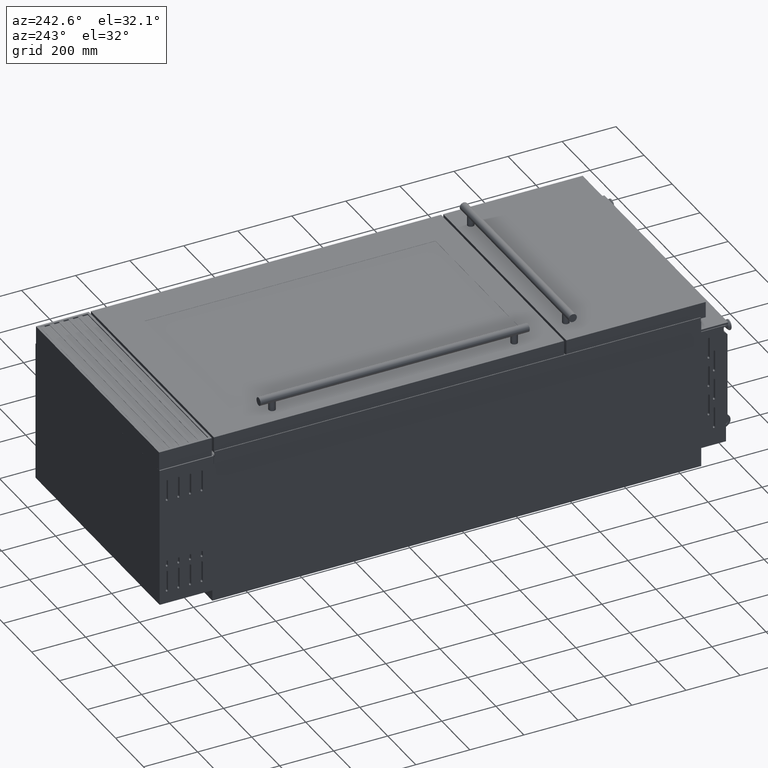
[diagram: clean part render]
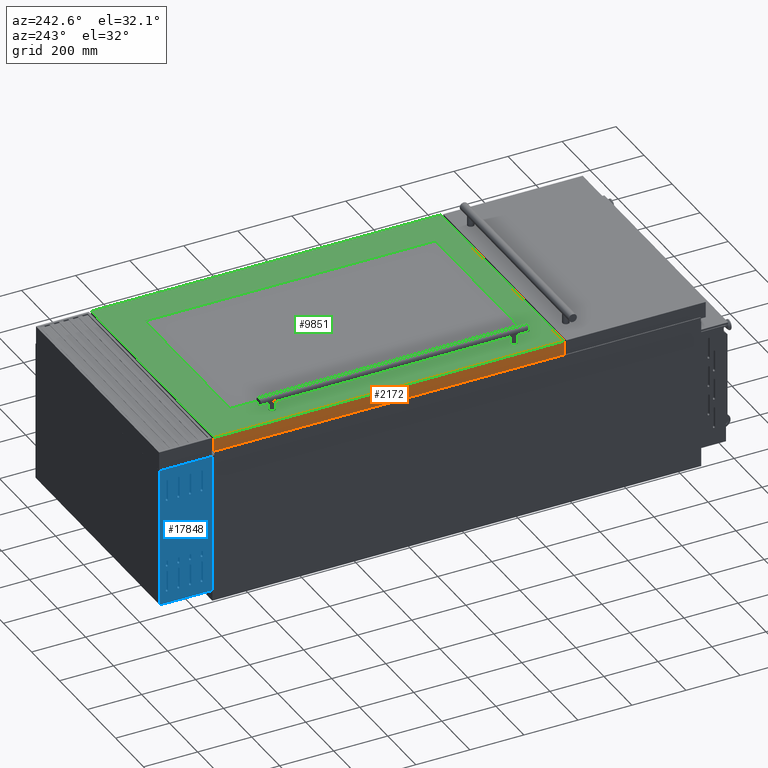
[diagram: same view with three faces highlighted in distinct colors, each labeled with its STEP entity id]
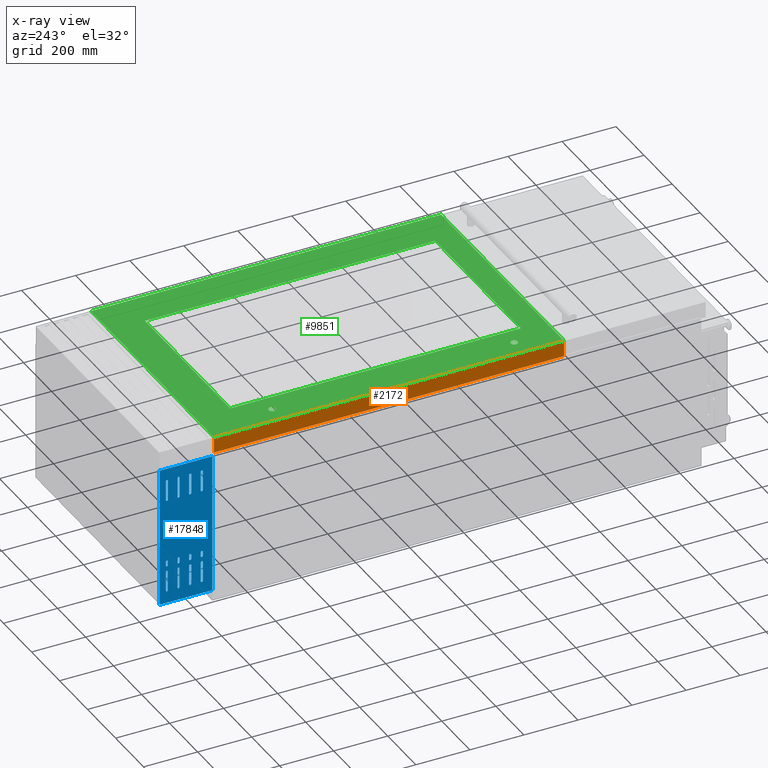
[diagram: x-ray of the same camera — body ghosted, the three highlighted faces saturated]
A machine part, auxiliary view with three faces highlighted in distinct colors.
The next image is the same camera in x-ray (body ghosted, the three faces saturated) — at least one of them is partly hidden behind the body in this view.
Their STEP definitions:

[orange] entity #2172 — the highlighted planar face has unit normal (1, 0, 0).
#817 = LINE ( 'NONE', #4638, #18185 ) ;
#1066 = DIRECTION ( 'NONE',  ( -0.0000000000000000000, -1.000000000000000000, -0.0000000000000000000 ) ) ;
#1928 = DIRECTION ( 'NONE',  ( -0.0000000000000000000, -0.0000000000000000000, -1.000000000000000000 ) ) ;
#2172 = ADVANCED_FACE ( 'NONE', ( #12111 ), #18473, .F. ) ;
#3362 = VERTEX_POINT ( 'NONE', #9250 ) ;
#3401 = CARTESIAN_POINT ( 'NONE',  ( -439.4999993500006800, 945.3500000000000200, 349.0000000000001100 ) ) ;
#3466 = DIRECTION ( 'NONE',  ( -0.0000000000000000000, -0.0000000000000000000, -1.000000000000000000 ) ) ;
#4139 = EDGE_CURVE ( 'NONE', #15438, #5495, #9909, .T. ) ;
#4638 = CARTESIAN_POINT ( 'NONE',  ( -439.4999993500006800, -350.6500000000000300, 349.0000000000001100 ) ) ;
#4844 = ORIENTED_EDGE ( 'NONE', *, *, #16364, .T. ) ;
#4917 = EDGE_LOOP ( 'NONE', ( #4844, #7788, #6178, #14818 ) ) ;
#4963 = DIRECTION ( 'NONE',  ( 0.0000000000000000000, 0.0000000000000000000, -1.000000000000000000 ) ) ;
#5036 = DIRECTION ( 'NONE',  ( 1.000000000000000000, 0.0000000000000000000, 0.0000000000000000000 ) ) ;
#5495 = VERTEX_POINT ( 'NONE', #19043 ) ;
#5905 = VECTOR ( 'NONE', #3466, 1000.000000000000000 ) ;
#6178 = ORIENTED_EDGE ( 'NONE', *, *, #12892, .F. ) ;
#6608 = VERTEX_POINT ( 'NONE', #15229 ) ;
#6886 = VECTOR ( 'NONE', #1066, 1000.000000000000000 ) ;
#7788 = ORIENTED_EDGE ( 'NONE', *, *, #14039, .F. ) ;
#9250 = CARTESIAN_POINT ( 'NONE',  ( -439.4999993500006800, -350.6500000000000300, 290.0000000000001100 ) ) ;
#9909 = LINE ( 'NONE', #12776, #5905 ) ;
#12111 = FACE_OUTER_BOUND ( 'NONE', #4917, .T. ) ;
#12252 = AXIS2_PLACEMENT_3D ( 'NONE', #12625, #5036, #4963 ) ;
#12625 = CARTESIAN_POINT ( 'NONE',  ( -439.4999993500006800, -350.6500000000000300, 349.0000000000001100 ) ) ;
#12734 = LINE ( 'NONE', #17501, #6886 ) ;
#12776 = CARTESIAN_POINT ( 'NONE',  ( -439.4999993500006800, 945.3500000000000200, 349.0000000000001100 ) ) ;
#12892 = EDGE_CURVE ( 'NONE', #15438, #6608, #817, .T. ) ;
#13852 = CARTESIAN_POINT ( 'NONE',  ( -439.4999993500006800, -350.6500000000000300, 349.0000000000001100 ) ) ;
#14039 = EDGE_CURVE ( 'NONE', #6608, #3362, #19020, .T. ) ;
#14818 = ORIENTED_EDGE ( 'NONE', *, *, #4139, .T. ) ;
#15044 = VECTOR ( 'NONE', #1928, 1000.000000000000000 ) ;
#15135 = DIRECTION ( 'NONE',  ( -0.0000000000000000000, -1.000000000000000000, -0.0000000000000000000 ) ) ;
#15229 = CARTESIAN_POINT ( 'NONE',  ( -439.4999993500006800, -350.6500000000000300, 349.0000000000001100 ) ) ;
#15438 = VERTEX_POINT ( 'NONE', #3401 ) ;
#16364 = EDGE_CURVE ( 'NONE', #5495, #3362, #12734, .T. ) ;
#17501 = CARTESIAN_POINT ( 'NONE',  ( -439.4999993500006800, -350.6500000000000300, 290.0000000000001100 ) ) ;
#18185 = VECTOR ( 'NONE', #15135, 1000.000000000000000 ) ;
#18473 = PLANE ( 'NONE',  #12252 ) ;
#19020 = LINE ( 'NONE', #13852, #15044 ) ;
#19043 = CARTESIAN_POINT ( 'NONE',  ( -439.4999993500006800, 945.3500000000000200, 290.0000000000001100 ) ) ;

[blue] entity #17848 — the highlighted planar face has unit normal (1, -0, 0).
#25 = VERTEX_POINT ( 'NONE', #13879 ) ;
#34 = CARTESIAN_POINT ( 'NONE',  ( -443.0000000000000600, 992.3500000000007000, -75.97999999999996100 ) ) ;
#106 = EDGE_CURVE ( 'NONE', #8169, #7935, #3917, .T. ) ;
#150 = CARTESIAN_POINT ( 'NONE',  ( -443.0000000000000600, 988.3500000000005900, -94.97999999999987600 ) ) ;
#154 = DIRECTION ( 'NONE',  ( 1.000000000000000000, -0.0000000000000000000, -1.067522139062650300E-016 ) ) ;
#172 = EDGE_LOOP ( 'NONE', ( #4499, #9025, #9192, #9370, #8492 ) ) ;
#180 = EDGE_CURVE ( 'NONE', #2070, #16384, #12817, .T. ) ;
#183 = CARTESIAN_POINT ( 'NONE',  ( -443.0000000000000600, 1031.350000000000100, -94.97999999999984800 ) ) ;
#185 = CARTESIAN_POINT ( 'NONE',  ( -443.0000000000000600, 996.3500000000007000, -191.9799999999999300 ) ) ;
#186 = DIRECTION ( 'NONE',  ( 0.0000000000000000000, 0.0000000000000000000, -1.000000000000000000 ) ) ;
#195 = CIRCLE ( 'NONE', #264, 4.000000000000003600 ) ;
#230 = CARTESIAN_POINT ( 'NONE',  ( -443.0000000000000600, 1121.350000000000400, -79.97999999999990500 ) ) ;
#264 = AXIS2_PLACEMENT_3D ( 'NONE', #3281, #6479, #16955 ) ;
#296 = VERTEX_POINT ( 'NONE', #16643 ) ;
#347 = VERTEX_POINT ( 'NONE', #13907 ) ;
#411 = LINE ( 'NONE', #15000, #11890 ) ;
#672 = CARTESIAN_POINT ( 'NONE',  ( -443.0000000000000000, 1148.350000000000100, -239.9999999999998600 ) ) ;
#679 = FACE_BOUND ( 'NONE', #8314, .T. ) ;
#688 = EDGE_CURVE ( 'NONE', #876, #2163, #3421, .T. ) ;
#698 = DIRECTION ( 'NONE',  ( 0.0000000000000000000, 0.0000000000000000000, -1.000000000000000000 ) ) ;
#758 = CARTESIAN_POINT ( 'NONE',  ( -443.0000000000000600, 1031.350000000000400, 159.9800000000002200 ) ) ;
#840 = AXIS2_PLACEMENT_3D ( 'NONE', #6106, #7482, #7743 ) ;
#876 = VERTEX_POINT ( 'NONE', #13476 ) ;
#886 = AXIS2_PLACEMENT_3D ( 'NONE', #15368, #13813, #6395 ) ;
#907 = AXIS2_PLACEMENT_3D ( 'NONE', #18463, #8021, #9474 ) ;
#964 = VECTOR ( 'NONE', #3979, 1000.000000000000000 ) ;
#966 = DIRECTION ( 'NONE',  ( 1.000000000000000000, -0.0000000000000000000, -1.067522139062650300E-016 ) ) ;
#967 = DIRECTION ( 'NONE',  ( 0.0000000000000000000, 0.0000000000000000000, 1.000000000000000000 ) ) ;
#968 = ORIENTED_EDGE ( 'NONE', *, *, #2478, .T. ) ;
#979 = ORIENTED_EDGE ( 'NONE', *, *, #11142, .T. ) ;
#1019 = LINE ( 'NONE', #10016, #3598 ) ;
#1022 = CARTESIAN_POINT ( 'NONE',  ( -443.0000000000000600, 992.3500000000007000, -119.9799999999999200 ) ) ;
#1070 = CARTESIAN_POINT ( 'NONE',  ( -443.0000000000000600, 1121.350000000000600, -94.97999999999990500 ) ) ;
#1117 = EDGE_CURVE ( 'NONE', #7165, #12181, #4077, .T. ) ;
#1142 = FACE_BOUND ( 'NONE', #15529, .T. ) ;
#1165 = EDGE_LOOP ( 'NONE', ( #6804, #7881, #5252, #15673, #17868 ) ) ;
#1195 = DIRECTION ( 'NONE',  ( 0.0000000000000000000, -0.0000000000000000000, -1.000000000000000000 ) ) ;
#1221 = CARTESIAN_POINT ( 'NONE',  ( -443.0000000000000600, 1035.350000000000400, 159.9800000000001000 ) ) ;
#1300 = DIRECTION ( 'NONE',  ( 0.0000000000000000000, 0.0000000000000000000, -1.000000000000000000 ) ) ;
#1333 = ORIENTED_EDGE ( 'NONE', *, *, #3010, .T. ) ;
#1497 = CARTESIAN_POINT ( 'NONE',  ( -443.0000000000000600, 1035.350000000000400, -115.9799999999998900 ) ) ;
#1556 = VECTOR ( 'NONE', #14692, 1000.000000000000000 ) ;
#1562 = CIRCLE ( 'NONE', #8762, 4.000000000000225600 ) ;
#1595 = LINE ( 'NONE', #5511, #8843 ) ;
#1599 = EDGE_CURVE ( 'NONE', #15693, #12159, #14495, .T. ) ;
#1609 = CIRCLE ( 'NONE', #5859, 4.000000000000114600 ) ;
#1630 = CARTESIAN_POINT ( 'NONE',  ( -443.0000000000000600, 1117.350000000000400, 231.9800000000001600 ) ) ;
#1645 = CARTESIAN_POINT ( 'NONE',  ( -443.0000000000000600, 988.3500000000007000, 159.9800000000001300 ) ) ;
#1722 = EDGE_LOOP ( 'NONE', ( #15289, #7330, #3874, #12455, #8467 ) ) ;
#1767 = VECTOR ( 'NONE', #3076, 1000.000000000000000 ) ;
#1777 = CIRCLE ( 'NONE', #9581, 4.000000000000003600 ) ;
#1811 = VECTOR ( 'NONE', #8220, 1000.000000000000000 ) ;
#1828 = CARTESIAN_POINT ( 'NONE',  ( -443.0000000000000600, 1039.350000000000400, -191.9799999999999900 ) ) ;
#2012 = VECTOR ( 'NONE', #17873, 1000.000000000000000 ) ;
#2059 = LINE ( 'NONE', #8709, #1556 ) ;
#2070 = VERTEX_POINT ( 'NONE', #1630 ) ;
#2077 = CARTESIAN_POINT ( 'NONE',  ( -443.0000000000000600, 996.3500000000007000, 159.9800000000001300 ) ) ;
#2083 = PLANE ( 'NONE',  #7268 ) ;
#2088 = AXIS2_PLACEMENT_3D ( 'NONE', #17200, #9742, #17262 ) ;
#2098 = FACE_BOUND ( 'NONE', #1165, .T. ) ;
#2101 = CARTESIAN_POINT ( 'NONE',  ( -443.0000000000000600, 1121.350000000000400, 231.9800000000001600 ) ) ;
#2163 = VERTEX_POINT ( 'NONE', #8038 ) ;
#2178 = DIRECTION ( 'NONE',  ( 0.0000000000000000000, 0.0000000000000000000, -1.000000000000000000 ) ) ;
#2316 = CARTESIAN_POINT ( 'NONE',  ( -443.0000000000000600, 1121.350000000000400, -115.9799999999998900 ) ) ;
#2383 = AXIS2_PLACEMENT_3D ( 'NONE', #2945, #10545, #19312 ) ;
#2425 = DIRECTION ( 'NONE',  ( 1.000000000000000000, -0.0000000000000000000, -1.067522139062650300E-016 ) ) ;
#2478 = EDGE_CURVE ( 'NONE', #5921, #347, #4093, .T. ) ;
#2493 = CIRCLE ( 'NONE', #8978, 4.000000000000003600 ) ;
#2515 = CIRCLE ( 'NONE', #15174, 4.000000000000003600 ) ;
#2543 = EDGE_CURVE ( 'NONE', #6942, #5008, #5043, .T. ) ;
#2551 = CIRCLE ( 'NONE', #14973, 4.000000000000003600 ) ;
#2561 = DIRECTION ( 'NONE',  ( 1.000000000000000000, -0.0000000000000000000, -1.067522139062650300E-016 ) ) ;
#2581 = DIRECTION ( 'NONE',  ( 1.000000000000000000, -0.0000000000000000000, -1.067522139062650300E-016 ) ) ;
#2605 = VERTEX_POINT ( 'NONE', #7170 ) ;
#2609 = ORIENTED_EDGE ( 'NONE', *, *, #18442, .T. ) ;
#2629 = ORIENTED_EDGE ( 'NONE', *, *, #18118, .T. ) ;
#2665 = VERTEX_POINT ( 'NONE', #18437 ) ;
#2676 = EDGE_CURVE ( 'NONE', #13024, #16521, #7854, .T. ) ;
#2691 = ORIENTED_EDGE ( 'NONE', *, *, #14420, .T. ) ;
#2706 = CIRCLE ( 'NONE', #12511, 4.000000000000003600 ) ;
#2750 = ORIENTED_EDGE ( 'NONE', *, *, #13135, .T. ) ;
#2774 = DIRECTION ( 'NONE',  ( 0.0000000000000000000, 0.0000000000000000000, 1.000000000000000000 ) ) ;
#2820 = CARTESIAN_POINT ( 'NONE',  ( -443.0000000000000600, 1078.350000000000400, 159.9800000000001000 ) ) ;
#2913 = CARTESIAN_POINT ( 'NONE',  ( -443.0000000000000600, 1078.350000000000400, 235.9800000000001300 ) ) ;
#2945 = CARTESIAN_POINT ( 'NONE',  ( -443.0000000000000600, 1121.350000000000400, -119.9799999999998900 ) ) ;
#3010 = EDGE_CURVE ( 'NONE', #18115, #14449, #5282, .T. ) ;
#3076 = DIRECTION ( 'NONE',  ( 0.0000000000000000000, 0.0000000000000000000, 1.000000000000000000 ) ) ;
#3077 = VERTEX_POINT ( 'NONE', #16879 ) ;
#3087 = DIRECTION ( 'NONE',  ( 0.0000000000000000000, 0.0000000000000000000, -1.000000000000000000 ) ) ;
#3104 = ORIENTED_EDGE ( 'NONE', *, *, #13248, .F. ) ;
#3107 = CIRCLE ( 'NONE', #5886, 4.000000000000003600 ) ;
#3142 = DIRECTION ( 'NONE',  ( 0.0000000000000000000, 0.0000000000000000000, 1.000000000000000000 ) ) ;
#3155 = VECTOR ( 'NONE', #5106, 1000.000000000000000 ) ;
#3210 = VECTOR ( 'NONE', #15830, 1000.000000000000000 ) ;
#3261 = DIRECTION ( 'NONE',  ( 0.0000000000000000000, 0.0000000000000000000, -1.000000000000000000 ) ) ;
#3281 = CARTESIAN_POINT ( 'NONE',  ( -443.0000000000000600, 1078.350000000000400, -119.9799999999998300 ) ) ;
#3302 = CARTESIAN_POINT ( 'NONE',  ( -443.0000000000000600, 988.3500000000008200, -79.97999999999986200 ) ) ;
#3306 = DIRECTION ( 'NONE',  ( 1.000000000000000000, -0.0000000000000000000, -1.067522139062650300E-016 ) ) ;
#3326 = CARTESIAN_POINT ( 'NONE',  ( -443.0000000000000600, 1125.350000000000400, 231.9800000000001600 ) ) ;
#3333 = VECTOR ( 'NONE', #19455, 1000.000000000000000 ) ;
#3421 = CIRCLE ( 'NONE', #907, 4.000000000000003600 ) ;
#3552 = CARTESIAN_POINT ( 'NONE',  ( -443.0000000000000000, 1074.350000000000400, -191.9799999999999300 ) ) ;
#3577 = DIRECTION ( 'NONE',  ( 0.0000000000000000000, 0.0000000000000000000, -1.000000000000000000 ) ) ;
#3598 = VECTOR ( 'NONE', #4101, 1000.000000000000000 ) ;
#3625 = EDGE_CURVE ( 'NONE', #5588, #17626, #7105, .T. ) ;
#3667 = DIRECTION ( 'NONE',  ( 1.000000000000000000, -0.0000000000000000000, -1.067522139062650300E-016 ) ) ;
#3707 = LINE ( 'NONE', #8044, #17757 ) ;
#3709 = CARTESIAN_POINT ( 'NONE',  ( -443.0000000000000600, 1074.350000000000400, 231.9800000000001300 ) ) ;
#3720 = FACE_BOUND ( 'NONE', #5432, .T. ) ;
#3747 = CARTESIAN_POINT ( 'NONE',  ( -443.0000000000000600, 1039.350000000000400, -191.9799999999999900 ) ) ;
#3818 = VERTEX_POINT ( 'NONE', #6829 ) ;
#3821 = DIRECTION ( 'NONE',  ( 0.0000000000000000000, -0.0000000000000000000, -1.000000000000000000 ) ) ;
#3874 = ORIENTED_EDGE ( 'NONE', *, *, #4800, .T. ) ;
#3876 = AXIS2_PLACEMENT_3D ( 'NONE', #8109, #966, #17477 ) ;
#3917 = LINE ( 'NONE', #6589, #11429 ) ;
#3949 = DIRECTION ( 'NONE',  ( 1.000000000000000000, -0.0000000000000000000, -1.067522139062650300E-016 ) ) ;
#3979 = DIRECTION ( 'NONE',  ( 0.0000000000000000000, 0.0000000000000000000, 1.000000000000000000 ) ) ;
#4032 = VERTEX_POINT ( 'NONE', #16494 ) ;
#4066 = AXIS2_PLACEMENT_3D ( 'NONE', #230, #9146, #3261 ) ;
#4077 = CIRCLE ( 'NONE', #15870, 4.000000000000003600 ) ;
#4093 = LINE ( 'NONE', #12047, #1767 ) ;
#4101 = DIRECTION ( 'NONE',  ( -0.0000000000000000000, -1.000000000000000000, -0.0000000000000000000 ) ) ;
#4103 = CARTESIAN_POINT ( 'NONE',  ( -443.0000000000000000, 996.3500000000005900, -79.97999999999983300 ) ) ;
#4164 = FACE_BOUND ( 'NONE', #17386, .T. ) ;
#4226 = VERTEX_POINT ( 'NONE', #14591 ) ;
#4227 = VERTEX_POINT ( 'NONE', #4103 ) ;
#4243 = EDGE_CURVE ( 'NONE', #2163, #8675, #19247, .T. ) ;
#4256 = CARTESIAN_POINT ( 'NONE',  ( -443.0000000000000600, 996.3500000000007000, -191.9799999999999300 ) ) ;
#4298 = EDGE_CURVE ( 'NONE', #19195, #18329, #17146, .T. ) ;
#4324 = VECTOR ( 'NONE', #6616, 1000.000000000000000 ) ;
#4436 = DIRECTION ( 'NONE',  ( 1.000000000000000000, -0.0000000000000000000, -1.067522139062650300E-016 ) ) ;
#4499 = ORIENTED_EDGE ( 'NONE', *, *, #19226, .T. ) ;
#4532 = VERTEX_POINT ( 'NONE', #18331 ) ;
#4546 = CARTESIAN_POINT ( 'NONE',  ( -443.0000000000000600, 992.3500000000007000, 235.9800000000001300 ) ) ;
#4550 = DIRECTION ( 'NONE',  ( 1.000000000000000000, -0.0000000000000000000, -1.067522139062650300E-016 ) ) ;
#4566 = LINE ( 'NONE', #14145, #6929 ) ;
#4800 = EDGE_CURVE ( 'NONE', #6923, #15693, #11262, .T. ) ;
#4823 = VECTOR ( 'NONE', #9845, 1000.000000000000000 ) ;
#4896 = AXIS2_PLACEMENT_3D ( 'NONE', #9936, #5475, #14505 ) ;
#4954 = DIRECTION ( 'NONE',  ( 0.0000000000000000000, 0.0000000000000000000, -1.000000000000000000 ) ) ;
#5008 = VERTEX_POINT ( 'NONE', #10510 ) ;
#5043 = CIRCLE ( 'NONE', #14512, 4.000000000000003600 ) ;
#5069 = CARTESIAN_POINT ( 'NONE',  ( -443.0000000000000600, 1078.350000000000400, 231.9800000000001300 ) ) ;
#5106 = DIRECTION ( 'NONE',  ( 0.0000000000000000000, 0.0000000000000000000, 1.000000000000000000 ) ) ;
#5138 = LINE ( 'NONE', #3709, #9822 ) ;
#5173 = DIRECTION ( 'NONE',  ( 0.0000000000000000000, 0.0000000000000000000, -1.000000000000000000 ) ) ;
#5188 = ORIENTED_EDGE ( 'NONE', *, *, #17766, .T. ) ;
#5189 = ORIENTED_EDGE ( 'NONE', *, *, #6524, .T. ) ;
#5221 = DIRECTION ( 'NONE',  ( 0.0000000000000000000, 0.0000000000000000000, -1.000000000000000000 ) ) ;
#5248 = DIRECTION ( 'NONE',  ( 0.0000000000000000000, 0.0000000000000000000, -1.000000000000000000 ) ) ;
#5252 = ORIENTED_EDGE ( 'NONE', *, *, #180, .T. ) ;
#5266 = VERTEX_POINT ( 'NONE', #185 ) ;
#5282 = LINE ( 'NONE', #9030, #2012 ) ;
#5313 = CIRCLE ( 'NONE', #6933, 4.000000000000003600 ) ;
#5341 = EDGE_CURVE ( 'NONE', #14416, #25, #1609, .T. ) ;
#5350 = CIRCLE ( 'NONE', #4066, 4.000000000000225600 ) ;
#5362 = EDGE_CURVE ( 'NONE', #16065, #18840, #10527, .T. ) ;
#5374 = EDGE_CURVE ( 'NONE', #3818, #2070, #18023, .T. ) ;
#5432 = EDGE_LOOP ( 'NONE', ( #8931, #7639, #6369, #11937, #9491 ) ) ;
#5436 = EDGE_CURVE ( 'NONE', #13620, #296, #3707, .T. ) ;
#5475 = DIRECTION ( 'NONE',  ( 1.000000000000000000, -0.0000000000000000000, -1.067522139062650300E-016 ) ) ;
#5483 = CARTESIAN_POINT ( 'NONE',  ( -443.0000000000000600, 1125.350000000000400, -119.9799999999998900 ) ) ;
#5511 = CARTESIAN_POINT ( 'NONE',  ( -443.0000000000000600, 1039.350000000000400, 231.9800000000001300 ) ) ;
#5588 = VERTEX_POINT ( 'NONE', #11702 ) ;
#5724 = CARTESIAN_POINT ( 'NONE',  ( -443.0000000000000600, 1035.350000000000400, -75.97999999999962000 ) ) ;
#5777 = EDGE_CURVE ( 'NONE', #2665, #8901, #13176, .T. ) ;
#5823 = CARTESIAN_POINT ( 'NONE',  ( -443.0000000000000600, 1074.350000000000400, -94.97999999999987600 ) ) ;
#5853 = ORIENTED_EDGE ( 'NONE', *, *, #7588, .T. ) ;
#5859 = AXIS2_PLACEMENT_3D ( 'NONE', #14225, #18539, #5248 ) ;
#5873 = DIRECTION ( 'NONE',  ( 1.000000000000000000, -0.0000000000000000000, -1.067522139062650300E-016 ) ) ;
#5886 = AXIS2_PLACEMENT_3D ( 'NONE', #10361, #10558, #3087 ) ;
#5921 = VERTEX_POINT ( 'NONE', #2077 ) ;
#5924 = CIRCLE ( 'NONE', #6791, 4.000000000000225600 ) ;
#5934 = EDGE_CURVE ( 'NONE', #8675, #11490, #19054, .T. ) ;
#5950 = ORIENTED_EDGE ( 'NONE', *, *, #106, .T. ) ;
#6102 = EDGE_CURVE ( 'NONE', #8198, #18248, #13912, .T. ) ;
#6106 = CARTESIAN_POINT ( 'NONE',  ( -443.0000000000000600, 992.3500000000007000, 231.9800000000001300 ) ) ;
#6130 = AXIS2_PLACEMENT_3D ( 'NONE', #2820, #7199, #10172 ) ;
#6191 = EDGE_CURVE ( 'NONE', #12705, #13620, #17631, .T. ) ;
#6229 = CARTESIAN_POINT ( 'NONE',  ( -443.0000000000000600, 1039.350000000000400, -119.9799999999999500 ) ) ;
#6271 = EDGE_CURVE ( 'NONE', #14327, #4226, #10153, .T. ) ;
#6332 = CARTESIAN_POINT ( 'NONE',  ( -443.0000000000000600, 1074.350000000000400, -119.9799999999999200 ) ) ;
#6369 = ORIENTED_EDGE ( 'NONE', *, *, #17826, .T. ) ;
#6381 = ORIENTED_EDGE ( 'NONE', *, *, #8705, .T. ) ;
#6395 = DIRECTION ( 'NONE',  ( 0.0000000000000000000, 0.0000000000000000000, 1.000000000000000000 ) ) ;
#6465 = CARTESIAN_POINT ( 'NONE',  ( -443.0000000000000600, 1035.350000000000400, 231.9800000000000800 ) ) ;
#6479 = DIRECTION ( 'NONE',  ( 1.000000000000000000, -0.0000000000000000000, -1.067522139062650300E-016 ) ) ;
#6504 = CARTESIAN_POINT ( 'NONE',  ( -443.0000000000000600, 1121.350000000000400, 231.9800000000001600 ) ) ;
#6524 = EDGE_CURVE ( 'NONE', #5008, #12705, #7291, .T. ) ;
#6529 = EDGE_CURVE ( 'NONE', #16521, #5921, #3107, .T. ) ;
#6532 = FACE_OUTER_BOUND ( 'NONE', #10883, .T. ) ;
#6562 = VERTEX_POINT ( 'NONE', #17885 ) ;
#6569 = CARTESIAN_POINT ( 'NONE',  ( -443.0000000000000600, 1121.350000000000400, -119.9799999999998900 ) ) ;
#6589 = CARTESIAN_POINT ( 'NONE',  ( -443.0000000000000000, 953.3500000000001400, 280.0000000000001700 ) ) ;
#6616 = DIRECTION ( 'NONE',  ( 0.0000000000000000000, 0.0000000000000000000, -1.000000000000000000 ) ) ;
#6638 = AXIS2_PLACEMENT_3D ( 'NONE', #8277, #3949, #14316 ) ;
#6654 = CIRCLE ( 'NONE', #3876, 4.000000000000003600 ) ;
#6761 = LINE ( 'NONE', #7286, #17545 ) ;
#6763 = AXIS2_PLACEMENT_3D ( 'NONE', #17085, #2425, #8114 ) ;
#6779 = CARTESIAN_POINT ( 'NONE',  ( -443.0000000000000600, 1031.350000000000400, 231.9800000000000800 ) ) ;
#6791 = AXIS2_PLACEMENT_3D ( 'NONE', #7660, #4436, #186 ) ;
#6803 = EDGE_CURVE ( 'NONE', #17601, #13024, #7273, .T. ) ;
#6804 = ORIENTED_EDGE ( 'NONE', *, *, #16083, .T. ) ;
#6829 = CARTESIAN_POINT ( 'NONE',  ( -443.0000000000000600, 1121.350000000000400, 235.9800000000001600 ) ) ;
#6851 = DIRECTION ( 'NONE',  ( 1.000000000000000000, -0.0000000000000000000, -1.067522139062650300E-016 ) ) ;
#6859 = VECTOR ( 'NONE', #14750, 1000.000000000000000 ) ;
#6902 = LINE ( 'NONE', #9495, #3155 ) ;
#6912 = ORIENTED_EDGE ( 'NONE', *, *, #14325, .T. ) ;
#6919 = ORIENTED_EDGE ( 'NONE', *, *, #11674, .T. ) ;
#6923 = VERTEX_POINT ( 'NONE', #12813 ) ;
#6929 = VECTOR ( 'NONE', #15431, 1000.000000000000000 ) ;
#6933 = AXIS2_PLACEMENT_3D ( 'NONE', #9681, #12365, #4954 ) ;
#6942 = VERTEX_POINT ( 'NONE', #14384 ) ;
#7002 = AXIS2_PLACEMENT_3D ( 'NONE', #6569, #7762, #18270 ) ;
#7105 = CIRCLE ( 'NONE', #15360, 4.000000000000003600 ) ;
#7125 = DIRECTION ( 'NONE',  ( 0.0000000000000000000, 0.0000000000000000000, 1.000000000000000000 ) ) ;
#7165 = VERTEX_POINT ( 'NONE', #16448 ) ;
#7170 = CARTESIAN_POINT ( 'NONE',  ( -443.0000000000000600, 1082.350000000000400, -191.9799999999999300 ) ) ;
#7199 = DIRECTION ( 'NONE',  ( 1.000000000000000000, -0.0000000000000000000, -1.067522139062650300E-016 ) ) ;
#7224 = CARTESIAN_POINT ( 'NONE',  ( -443.0000000000000600, 1035.350000000000400, -79.97999999999984800 ) ) ;
#7231 = EDGE_CURVE ( 'NONE', #2665, #8169, #19217, .T. ) ;
#7267 = ORIENTED_EDGE ( 'NONE', *, *, #2543, .T. ) ;
#7268 = AXIS2_PLACEMENT_3D ( 'NONE', #17129, #17064, #5221 ) ;
#7273 = CIRCLE ( 'NONE', #6638, 4.000000000000003600 ) ;
#7281 = DIRECTION ( 'NONE',  ( 0.0000000000000000000, 0.0000000000000000000, 1.000000000000000000 ) ) ;
#7286 = CARTESIAN_POINT ( 'NONE',  ( -443.0000000000000600, 1074.350000000000400, -191.9799999999999300 ) ) ;
#7291 = LINE ( 'NONE', #15137, #3333 ) ;
#7311 = VERTEX_POINT ( 'NONE', #11110 ) ;
#7330 = ORIENTED_EDGE ( 'NONE', *, *, #16941, .T. ) ;
#7338 = CIRCLE ( 'NONE', #7627, 4.000000000000003600 ) ;
#7462 = CIRCLE ( 'NONE', #18389, 4.000000000000003600 ) ;
#7469 = FACE_BOUND ( 'NONE', #11069, .T. ) ;
#7482 = DIRECTION ( 'NONE',  ( 1.000000000000000000, -0.0000000000000000000, -1.067522139062650300E-016 ) ) ;
#7588 = EDGE_CURVE ( 'NONE', #4532, #8553, #195, .T. ) ;
#7627 = AXIS2_PLACEMENT_3D ( 'NONE', #6504, #3306, #10780 ) ;
#7639 = ORIENTED_EDGE ( 'NONE', *, *, #12443, .T. ) ;
#7660 = CARTESIAN_POINT ( 'NONE',  ( -443.0000000000000600, 1121.350000000000400, -79.97999999999990500 ) ) ;
#7686 = CARTESIAN_POINT ( 'NONE',  ( -443.0000000000000600, 1078.350000000000400, -79.97999999999987600 ) ) ;
#7692 = VERTEX_POINT ( 'NONE', #13827 ) ;
#7743 = DIRECTION ( 'NONE',  ( 0.0000000000000000000, 0.0000000000000000000, -1.000000000000000000 ) ) ;
#7762 = DIRECTION ( 'NONE',  ( 1.000000000000000000, -0.0000000000000000000, -1.067522139062650300E-016 ) ) ;
#7796 = ORIENTED_EDGE ( 'NONE', *, *, #18609, .T. ) ;
#7854 = LINE ( 'NONE', #17098, #4324 ) ;
#7881 = ORIENTED_EDGE ( 'NONE', *, *, #5374, .T. ) ;
#7935 = VERTEX_POINT ( 'NONE', #10711 ) ;
#8021 = DIRECTION ( 'NONE',  ( 1.000000000000000000, -0.0000000000000000000, -1.067522139062650300E-016 ) ) ;
#8038 = CARTESIAN_POINT ( 'NONE',  ( -443.0000000000000600, 1125.350000000000400, -191.9799999999999000 ) ) ;
#8044 = CARTESIAN_POINT ( 'NONE',  ( -443.0000000000000600, 1082.350000000000400, -79.97999999999987600 ) ) ;
#8071 = CARTESIAN_POINT ( 'NONE',  ( -443.0000000000000600, 1117.350000000000400, -191.9799999999999000 ) ) ;
#8101 = LINE ( 'NONE', #3747, #4823 ) ;
#8109 = CARTESIAN_POINT ( 'NONE',  ( -443.0000000000000600, 1078.350000000000400, -191.9799999999999300 ) ) ;
#8114 = DIRECTION ( 'NONE',  ( 0.0000000000000000000, 0.0000000000000000000, 1.000000000000000000 ) ) ;
#8130 = DIRECTION ( 'NONE',  ( -0.0000000000000000000, -1.000000000000000000, -0.0000000000000000000 ) ) ;
#8132 = LINE ( 'NONE', #18697, #17738 ) ;
#8164 = FACE_BOUND ( 'NONE', #11237, .T. ) ;
#8169 = VERTEX_POINT ( 'NONE', #11159 ) ;
#8172 = DIRECTION ( 'NONE',  ( 1.000000000000000000, -0.0000000000000000000, -1.067522139062650300E-016 ) ) ;
#8198 = VERTEX_POINT ( 'NONE', #14477 ) ;
#8220 = DIRECTION ( 'NONE',  ( 0.0000000000000000000, 0.0000000000000000000, -1.000000000000000000 ) ) ;
#8234 = DIRECTION ( 'NONE',  ( 0.0000000000000000000, 0.0000000000000000000, -1.000000000000000000 ) ) ;
#8277 = CARTESIAN_POINT ( 'NONE',  ( -443.0000000000000600, 992.3500000000007000, 231.9800000000001300 ) ) ;
#8279 = ORIENTED_EDGE ( 'NONE', *, *, #5362, .T. ) ;
#8313 = EDGE_CURVE ( 'NONE', #18248, #10658, #2515, .T. ) ;
#8314 = EDGE_LOOP ( 'NONE', ( #10604, #8769, #8279, #16148, #2629 ) ) ;
#8379 = EDGE_CURVE ( 'NONE', #11490, #6562, #11654, .T. ) ;
#8467 = ORIENTED_EDGE ( 'NONE', *, *, #15620, .T. ) ;
#8492 = ORIENTED_EDGE ( 'NONE', *, *, #14721, .T. ) ;
#8534 = DIRECTION ( 'NONE',  ( 0.0000000000000000000, 0.0000000000000000000, -1.000000000000000000 ) ) ;
#8553 = VERTEX_POINT ( 'NONE', #6332 ) ;
#8573 = DIRECTION ( 'NONE',  ( 1.000000000000000000, -0.0000000000000000000, -1.067522139062650300E-016 ) ) ;
#8632 = ORIENTED_EDGE ( 'NONE', *, *, #18808, .T. ) ;
#8675 = VERTEX_POINT ( 'NONE', #5483 ) ;
#8705 = EDGE_CURVE ( 'NONE', #17626, #11961, #15153, .T. ) ;
#8709 = CARTESIAN_POINT ( 'NONE',  ( -443.0000000000000600, 996.3500000000005900, -79.97999999999986200 ) ) ;
#8729 = DIRECTION ( 'NONE',  ( 0.0000000000000000000, -0.0000000000000000000, -1.000000000000000000 ) ) ;
#8762 = AXIS2_PLACEMENT_3D ( 'NONE', #7224, #17713, #17986 ) ;
#8769 = ORIENTED_EDGE ( 'NONE', *, *, #17958, .T. ) ;
#8804 = EDGE_CURVE ( 'NONE', #9117, #18083, #1562, .T. ) ;
#8816 = DIRECTION ( 'NONE',  ( 0.0000000000000000000, 0.0000000000000000000, 1.000000000000000000 ) ) ;
#8818 = DIRECTION ( 'NONE',  ( 0.0000000000000000000, 0.0000000000000000000, -1.000000000000000000 ) ) ;
#8843 = VECTOR ( 'NONE', #10034, 1000.000000000000000 ) ;
#8858 = CARTESIAN_POINT ( 'NONE',  ( -443.0000000000000600, 1125.350000000000600, -94.97999999999990500 ) ) ;
#8901 = VERTEX_POINT ( 'NONE', #15242 ) ;
#8911 = CIRCLE ( 'NONE', #840, 4.000000000000003600 ) ;
#8931 = ORIENTED_EDGE ( 'NONE', *, *, #1117, .T. ) ;
#8978 = AXIS2_PLACEMENT_3D ( 'NONE', #5069, #18696, #9582 ) ;
#9025 = ORIENTED_EDGE ( 'NONE', *, *, #4298, .T. ) ;
#9030 = CARTESIAN_POINT ( 'NONE',  ( -443.0000000000000600, 1125.350000000000600, -79.97999999999990500 ) ) ;
#9081 = CARTESIAN_POINT ( 'NONE',  ( -443.0000000000000600, 1031.350000000000400, 231.9800000000000800 ) ) ;
#9117 = VERTEX_POINT ( 'NONE', #15490 ) ;
#9146 = DIRECTION ( 'NONE',  ( 1.000000000000000000, -0.0000000000000000000, -1.067522139062650300E-016 ) ) ;
#9192 = ORIENTED_EDGE ( 'NONE', *, *, #18434, .T. ) ;
#9244 = AXIS2_PLACEMENT_3D ( 'NONE', #17787, #5873, #8818 ) ;
#9362 = CARTESIAN_POINT ( 'NONE',  ( -443.0000000000000600, 988.3500000000007000, 231.9800000000001300 ) ) ;
#9370 = ORIENTED_EDGE ( 'NONE', *, *, #5341, .T. ) ;
#9474 = DIRECTION ( 'NONE',  ( 0.0000000000000000000, 0.0000000000000000000, 1.000000000000000000 ) ) ;
#9491 = ORIENTED_EDGE ( 'NONE', *, *, #13121, .T. ) ;
#9495 = CARTESIAN_POINT ( 'NONE',  ( -443.0000000000000600, 1082.350000000000400, 231.9800000000001300 ) ) ;
#9581 = AXIS2_PLACEMENT_3D ( 'NONE', #12947, #6851, #9875 ) ;
#9582 = DIRECTION ( 'NONE',  ( 0.0000000000000000000, 0.0000000000000000000, -1.000000000000000000 ) ) ;
#9591 = FACE_BOUND ( 'NONE', #172, .T. ) ;
#9668 = CIRCLE ( 'NONE', #6763, 4.000000000000003600 ) ;
#9681 = CARTESIAN_POINT ( 'NONE',  ( -443.0000000000000600, 1121.350000000000400, 159.9800000000001600 ) ) ;
#9682 = DIRECTION ( 'NONE',  ( 1.000000000000000000, -0.0000000000000000000, -1.067522139062650300E-016 ) ) ;
#9684 = VECTOR ( 'NONE', #16539, 1000.000000000000000 ) ;
#9724 = ORIENTED_EDGE ( 'NONE', *, *, #5934, .T. ) ;
#9742 = DIRECTION ( 'NONE',  ( 1.000000000000000000, -0.0000000000000000000, -1.067522139062650300E-016 ) ) ;
#9745 = ORIENTED_EDGE ( 'NONE', *, *, #3625, .T. ) ;
#9822 = VECTOR ( 'NONE', #3577, 1000.000000000000000 ) ;
#9845 = DIRECTION ( 'NONE',  ( 0.0000000000000000000, 0.0000000000000000000, 1.000000000000000000 ) ) ;
#9872 = DIRECTION ( 'NONE',  ( 0.0000000000000000000, 0.0000000000000000000, 1.000000000000000000 ) ) ;
#9875 = DIRECTION ( 'NONE',  ( 0.0000000000000000000, 0.0000000000000000000, 1.000000000000000000 ) ) ;
#9919 = ORIENTED_EDGE ( 'NONE', *, *, #8313, .T. ) ;
#9936 = CARTESIAN_POINT ( 'NONE',  ( -443.0000000000000600, 1035.350000000000400, -79.97999999999984800 ) ) ;
#9997 = CARTESIAN_POINT ( 'NONE',  ( -443.0000000000000600, 1031.350000000000400, -191.9799999999999900 ) ) ;
#10014 = EDGE_CURVE ( 'NONE', #14449, #4032, #5924, .T. ) ;
#10016 = CARTESIAN_POINT ( 'NONE',  ( -443.0000000000000000, 1148.350000000000100, 280.0000000000001700 ) ) ;
#10034 = DIRECTION ( 'NONE',  ( 0.0000000000000000000, 0.0000000000000000000, 1.000000000000000000 ) ) ;
#10051 = VECTOR ( 'NONE', #5173, 1000.000000000000000 ) ;
#10093 = ORIENTED_EDGE ( 'NONE', *, *, #16842, .T. ) ;
#10136 = VECTOR ( 'NONE', #7281, 1000.000000000000000 ) ;
#10153 = LINE ( 'NONE', #12006, #6859 ) ;
#10170 = DIRECTION ( 'NONE',  ( 1.000000000000000000, -0.0000000000000000000, -1.067522139062650300E-016 ) ) ;
#10172 = DIRECTION ( 'NONE',  ( 0.0000000000000000000, 0.0000000000000000000, -1.000000000000000000 ) ) ;
#10275 = DIRECTION ( 'NONE',  ( 1.000000000000000000, -0.0000000000000000000, -1.067522139062650300E-016 ) ) ;
#10332 = ORIENTED_EDGE ( 'NONE', *, *, #6191, .T. ) ;
#10361 = CARTESIAN_POINT ( 'NONE',  ( -443.0000000000000600, 992.3500000000007000, 159.9800000000001300 ) ) ;
#10415 = CARTESIAN_POINT ( 'NONE',  ( -443.0000000000000600, 1117.350000000000100, -79.97999999999990500 ) ) ;
#10453 = CARTESIAN_POINT ( 'NONE',  ( -443.0000000000000600, 988.3500000000007000, -119.9799999999999200 ) ) ;
#10510 = CARTESIAN_POINT ( 'NONE',  ( -443.0000000000000600, 1074.350000000000400, -79.97999999999987600 ) ) ;
#10527 = LINE ( 'NONE', #17081, #10051 ) ;
#10545 = DIRECTION ( 'NONE',  ( 1.000000000000000000, -0.0000000000000000000, -1.067522139062650300E-016 ) ) ;
#10558 = DIRECTION ( 'NONE',  ( 1.000000000000000000, -0.0000000000000000000, -1.067522139062650300E-016 ) ) ;
#10566 = EDGE_CURVE ( 'NONE', #13610, #5266, #7462, .T. ) ;
#10604 = ORIENTED_EDGE ( 'NONE', *, *, #8804, .T. ) ;
#10622 = CIRCLE ( 'NONE', #6130, 4.000000000000003600 ) ;
#10658 = VERTEX_POINT ( 'NONE', #1828 ) ;
#10676 = CARTESIAN_POINT ( 'NONE',  ( -443.0000000000000000, 1148.350000000000100, 280.0000000000001700 ) ) ;
#10711 = CARTESIAN_POINT ( 'NONE',  ( -443.0000000000000000, 953.3500000000001400, 280.0000000000001700 ) ) ;
#10780 = DIRECTION ( 'NONE',  ( 0.0000000000000000000, 0.0000000000000000000, -1.000000000000000000 ) ) ;
#10781 = ORIENTED_EDGE ( 'NONE', *, *, #6529, .T. ) ;
#10883 = EDGE_LOOP ( 'NONE', ( #5950, #3104, #11161, #13597 ) ) ;
#10917 = ORIENTED_EDGE ( 'NONE', *, *, #6271, .T. ) ;
#11039 = ORIENTED_EDGE ( 'NONE', *, *, #15505, .T. ) ;
#11069 = EDGE_LOOP ( 'NONE', ( #9919, #18111, #17444, #10093, #11245 ) ) ;
#11110 = CARTESIAN_POINT ( 'NONE',  ( -443.0000000000000600, 1082.350000000000400, -119.9799999999999200 ) ) ;
#11123 = AXIS2_PLACEMENT_3D ( 'NONE', #1022, #2581, #9872 ) ;
#11142 = EDGE_CURVE ( 'NONE', #8553, #12503, #6761, .T. ) ;
#11159 = CARTESIAN_POINT ( 'NONE',  ( -443.0000000000000000, 953.3500000000001400, -239.9999999999998600 ) ) ;
#11161 = ORIENTED_EDGE ( 'NONE', *, *, #5777, .F. ) ;
#11200 = EDGE_CURVE ( 'NONE', #296, #6942, #2551, .T. ) ;
#11201 = VECTOR ( 'NONE', #3821, 1000.000000000000000 ) ;
#11237 = EDGE_LOOP ( 'NONE', ( #11039, #9745, #6381, #6912, #7796 ) ) ;
#11245 = ORIENTED_EDGE ( 'NONE', *, *, #6102, .T. ) ;
#11254 = CARTESIAN_POINT ( 'NONE',  ( -443.0000000000000600, 992.3500000000007000, -115.9799999999999200 ) ) ;
#11262 = CIRCLE ( 'NONE', #2088, 4.000000000000003600 ) ;
#11428 = CARTESIAN_POINT ( 'NONE',  ( -443.0000000000000600, 1125.350000000000400, 159.9800000000001600 ) ) ;
#11429 = VECTOR ( 'NONE', #18787, 1000.000000000000000 ) ;
#11475 = CIRCLE ( 'NONE', #4896, 4.000000000000225600 ) ;
#11490 = VERTEX_POINT ( 'NONE', #2316 ) ;
#11499 = VERTEX_POINT ( 'NONE', #11428 ) ;
#11504 = CIRCLE ( 'NONE', #9244, 4.000000000000225600 ) ;
#11561 = EDGE_CURVE ( 'NONE', #4226, #18115, #18928, .T. ) ;
#11654 = CIRCLE ( 'NONE', #2383, 4.000000000000003600 ) ;
#11674 = EDGE_CURVE ( 'NONE', #4032, #14327, #5350, .T. ) ;
#11702 = CARTESIAN_POINT ( 'NONE',  ( -443.0000000000000600, 1035.350000000000400, 235.9800000000000800 ) ) ;
#11704 = DIRECTION ( 'NONE',  ( 0.0000000000000000000, 0.0000000000000000000, -1.000000000000000000 ) ) ;
#11723 = EDGE_CURVE ( 'NONE', #11499, #7692, #17276, .T. ) ;
#11855 = DIRECTION ( 'NONE',  ( 1.000000000000000000, -0.0000000000000000000, -1.067522139062650300E-016 ) ) ;
#11890 = VECTOR ( 'NONE', #18295, 1000.000000000000000 ) ;
#11937 = ORIENTED_EDGE ( 'NONE', *, *, #16456, .T. ) ;
#11949 = AXIS2_PLACEMENT_3D ( 'NONE', #1070, #2561, #12992 ) ;
#11961 = VERTEX_POINT ( 'NONE', #758 ) ;
#12006 = CARTESIAN_POINT ( 'NONE',  ( -443.0000000000000600, 1117.350000000000100, -79.97999999999990500 ) ) ;
#12047 = CARTESIAN_POINT ( 'NONE',  ( -443.0000000000000600, 996.3500000000007000, 231.9800000000001300 ) ) ;
#12140 = CARTESIAN_POINT ( 'NONE',  ( -443.0000000000000600, 1074.350000000000400, 231.9800000000001300 ) ) ;
#12159 = VERTEX_POINT ( 'NONE', #10453 ) ;
#12170 = EDGE_LOOP ( 'NONE', ( #16711, #18409, #9724, #15972, #2609 ) ) ;
#12181 = VERTEX_POINT ( 'NONE', #2913 ) ;
#12365 = DIRECTION ( 'NONE',  ( 1.000000000000000000, -0.0000000000000000000, -1.067522139062650300E-016 ) ) ;
#12443 = EDGE_CURVE ( 'NONE', #12181, #14407, #2493, .T. ) ;
#12455 = ORIENTED_EDGE ( 'NONE', *, *, #1599, .T. ) ;
#12503 = VERTEX_POINT ( 'NONE', #3552 ) ;
#12511 = AXIS2_PLACEMENT_3D ( 'NONE', #6465, #9682, #698 ) ;
#12614 = EDGE_CURVE ( 'NONE', #10658, #17158, #8101, .T. ) ;
#12705 = VERTEX_POINT ( 'NONE', #5823 ) ;
#12786 = DIRECTION ( 'NONE',  ( 0.0000000000000000000, 0.0000000000000000000, -1.000000000000000000 ) ) ;
#12813 = CARTESIAN_POINT ( 'NONE',  ( -443.0000000000000600, 996.3500000000007000, -119.9799999999999200 ) ) ;
#12817 = LINE ( 'NONE', #18856, #1811 ) ;
#12872 = AXIS2_PLACEMENT_3D ( 'NONE', #19106, #17411, #11704 ) ;
#12947 = CARTESIAN_POINT ( 'NONE',  ( -443.0000000000000600, 1035.350000000000400, -119.9799999999998900 ) ) ;
#12954 = ORIENTED_EDGE ( 'NONE', *, *, #11561, .T. ) ;
#12962 = CARTESIAN_POINT ( 'NONE',  ( -443.0000000000000600, 1125.350000000000400, -191.9799999999999000 ) ) ;
#12992 = DIRECTION ( 'NONE',  ( 0.0000000000000000000, 0.0000000000000000000, -1.000000000000000000 ) ) ;
#13024 = VERTEX_POINT ( 'NONE', #9362 ) ;
#13098 = FACE_BOUND ( 'NONE', #18288, .T. ) ;
#13121 = EDGE_CURVE ( 'NONE', #18413, #7165, #6902, .T. ) ;
#13135 = EDGE_CURVE ( 'NONE', #12503, #2605, #6654, .T. ) ;
#13176 = LINE ( 'NONE', #10676, #9684 ) ;
#13248 = EDGE_CURVE ( 'NONE', #8901, #7935, #1019, .T. ) ;
#13350 = DIRECTION ( 'NONE',  ( 0.0000000000000000000, 0.0000000000000000000, -1.000000000000000000 ) ) ;
#13476 = CARTESIAN_POINT ( 'NONE',  ( -443.0000000000000000, 1117.350000000000400, -191.9799999999999300 ) ) ;
#13597 = ORIENTED_EDGE ( 'NONE', *, *, #7231, .T. ) ;
#13610 = VERTEX_POINT ( 'NONE', #17133 ) ;
#13620 = VERTEX_POINT ( 'NONE', #15891 ) ;
#13635 = AXIS2_PLACEMENT_3D ( 'NONE', #1221, #10170, #2178 ) ;
#13716 = VERTEX_POINT ( 'NONE', #14454 ) ;
#13813 = DIRECTION ( 'NONE',  ( 1.000000000000000000, -0.0000000000000000000, -1.067522139062650300E-016 ) ) ;
#13827 = CARTESIAN_POINT ( 'NONE',  ( -443.0000000000000000, 1125.350000000000400, 231.9800000000001600 ) ) ;
#13879 = CARTESIAN_POINT ( 'NONE',  ( -443.0000000000000600, 996.3500000000008200, -94.97999999999987600 ) ) ;
#13907 = CARTESIAN_POINT ( 'NONE',  ( -443.0000000000000000, 996.3500000000007000, 231.9800000000001300 ) ) ;
#13912 = LINE ( 'NONE', #9997, #15792 ) ;
#13981 = CARTESIAN_POINT ( 'NONE',  ( -443.0000000000000600, 1031.350000000000100, -79.97999999999984800 ) ) ;
#14145 = CARTESIAN_POINT ( 'NONE',  ( -443.0000000000000600, 988.3500000000007000, -191.9799999999999300 ) ) ;
#14225 = CARTESIAN_POINT ( 'NONE',  ( -443.0000000000000600, 992.3500000000007000, -94.97999999999987600 ) ) ;
#14244 = CARTESIAN_POINT ( 'NONE',  ( -443.0000000000000600, 1082.350000000000400, 159.9800000000001900 ) ) ;
#14265 = EDGE_CURVE ( 'NONE', #18840, #17188, #11504, .T. ) ;
#14316 = DIRECTION ( 'NONE',  ( 0.0000000000000000000, 0.0000000000000000000, -1.000000000000000000 ) ) ;
#14325 = EDGE_CURVE ( 'NONE', #11961, #13716, #18324, .T. ) ;
#14327 = VERTEX_POINT ( 'NONE', #10415 ) ;
#14384 = CARTESIAN_POINT ( 'NONE',  ( -443.0000000000000600, 1078.350000000000400, -75.97999999999986200 ) ) ;
#14407 = VERTEX_POINT ( 'NONE', #12140 ) ;
#14416 = VERTEX_POINT ( 'NONE', #150 ) ;
#14420 = EDGE_CURVE ( 'NONE', #347, #17601, #8911, .T. ) ;
#14449 = VERTEX_POINT ( 'NONE', #18256 ) ;
#14454 = CARTESIAN_POINT ( 'NONE',  ( -443.0000000000000600, 1039.350000000000400, 159.9800000000001600 ) ) ;
#14477 = CARTESIAN_POINT ( 'NONE',  ( -443.0000000000000600, 1031.350000000000400, -119.9800000000000000 ) ) ;
#14495 = CIRCLE ( 'NONE', #11123, 4.000000000000003600 ) ;
#14505 = DIRECTION ( 'NONE',  ( 0.0000000000000000000, 0.0000000000000000000, -1.000000000000000000 ) ) ;
#14508 = FACE_BOUND ( 'NONE', #14658, .T. ) ;
#14512 = AXIS2_PLACEMENT_3D ( 'NONE', #16420, #11855, #13350 ) ;
#14591 = CARTESIAN_POINT ( 'NONE',  ( -443.0000000000000600, 1117.350000000000400, -94.97999999999990500 ) ) ;
#14658 = EDGE_LOOP ( 'NONE', ( #15504, #6919, #10917, #12954, #1333 ) ) ;
#14692 = DIRECTION ( 'NONE',  ( 0.0000000000000000000, -1.480297366166874200E-014, 1.000000000000000000 ) ) ;
#14704 = CARTESIAN_POINT ( 'NONE',  ( -443.0000000000000600, 1039.350000000000600, -79.97999999999984800 ) ) ;
#14715 = AXIS2_PLACEMENT_3D ( 'NONE', #18340, #4550, #15123 ) ;
#14721 = EDGE_CURVE ( 'NONE', #25, #4227, #2059, .T. ) ;
#14750 = DIRECTION ( 'NONE',  ( 0.0000000000000000000, 0.0000000000000000000, -1.000000000000000000 ) ) ;
#14973 = AXIS2_PLACEMENT_3D ( 'NONE', #7686, #154, #15290 ) ;
#15000 = CARTESIAN_POINT ( 'NONE',  ( -443.0000000000000600, 1082.350000000000400, -191.9799999999999300 ) ) ;
#15123 = DIRECTION ( 'NONE',  ( 0.0000000000000000000, 0.0000000000000000000, -1.000000000000000000 ) ) ;
#15137 = CARTESIAN_POINT ( 'NONE',  ( -443.0000000000000600, 1074.350000000000400, -79.97999999999987600 ) ) ;
#15153 = LINE ( 'NONE', #6779, #3210 ) ;
#15161 = CARTESIAN_POINT ( 'NONE',  ( -443.0000000000000000, 1031.350000000000400, -191.9800000000000500 ) ) ;
#15174 = AXIS2_PLACEMENT_3D ( 'NONE', #17539, #8573, #7125 ) ;
#15242 = CARTESIAN_POINT ( 'NONE',  ( -443.0000000000000000, 1148.350000000000100, 280.0000000000001700 ) ) ;
#15289 = ORIENTED_EDGE ( 'NONE', *, *, #10566, .T. ) ;
#15290 = DIRECTION ( 'NONE',  ( 0.0000000000000000000, 0.0000000000000000000, -1.000000000000000000 ) ) ;
#15360 = AXIS2_PLACEMENT_3D ( 'NONE', #15713, #8172, #12786 ) ;
#15368 = CARTESIAN_POINT ( 'NONE',  ( -443.0000000000000600, 1078.350000000000400, -119.9799999999998300 ) ) ;
#15372 = CIRCLE ( 'NONE', #14715, 3.999999999999892500 ) ;
#15408 = LINE ( 'NONE', #14704, #18258 ) ;
#15431 = DIRECTION ( 'NONE',  ( 0.0000000000000000000, -0.0000000000000000000, -1.000000000000000000 ) ) ;
#15490 = CARTESIAN_POINT ( 'NONE',  ( -443.0000000000000000, 1039.350000000000600, -79.97999999999983300 ) ) ;
#15504 = ORIENTED_EDGE ( 'NONE', *, *, #10014, .T. ) ;
#15505 = EDGE_CURVE ( 'NONE', #3077, #5588, #2706, .T. ) ;
#15529 = EDGE_LOOP ( 'NONE', ( #2750, #8632, #5188, #5853, #979 ) ) ;
#15620 = EDGE_CURVE ( 'NONE', #12159, #13610, #4566, .T. ) ;
#15673 = ORIENTED_EDGE ( 'NONE', *, *, #19305, .T. ) ;
#15693 = VERTEX_POINT ( 'NONE', #11254 ) ;
#15713 = CARTESIAN_POINT ( 'NONE',  ( -443.0000000000000600, 1035.350000000000400, 231.9800000000000800 ) ) ;
#15792 = VECTOR ( 'NONE', #1195, 1000.000000000000000 ) ;
#15830 = DIRECTION ( 'NONE',  ( 0.0000000000000000000, 0.0000000000000000000, -1.000000000000000000 ) ) ;
#15870 = AXIS2_PLACEMENT_3D ( 'NONE', #16299, #10275, #1300 ) ;
#15891 = CARTESIAN_POINT ( 'NONE',  ( -443.0000000000000600, 1082.350000000000400, -94.97999999999987600 ) ) ;
#15972 = ORIENTED_EDGE ( 'NONE', *, *, #8379, .T. ) ;
#16065 = VERTEX_POINT ( 'NONE', #13981 ) ;
#16083 = EDGE_CURVE ( 'NONE', #7692, #3818, #7338, .T. ) ;
#16148 = ORIENTED_EDGE ( 'NONE', *, *, #14265, .T. ) ;
#16153 = CIRCLE ( 'NONE', #886, 4.000000000000003600 ) ;
#16299 = CARTESIAN_POINT ( 'NONE',  ( -443.0000000000000600, 1078.350000000000400, 231.9800000000001300 ) ) ;
#16384 = VERTEX_POINT ( 'NONE', #19071 ) ;
#16391 = VECTOR ( 'NONE', #8130, 1000.000000000000000 ) ;
#16420 = CARTESIAN_POINT ( 'NONE',  ( -443.0000000000000600, 1078.350000000000400, -79.97999999999987600 ) ) ;
#16442 = ORIENTED_EDGE ( 'NONE', *, *, #2676, .T. ) ;
#16448 = CARTESIAN_POINT ( 'NONE',  ( -443.0000000000000000, 1082.350000000000400, 231.9800000000001300 ) ) ;
#16456 = EDGE_CURVE ( 'NONE', #17232, #18413, #10622, .T. ) ;
#16494 = CARTESIAN_POINT ( 'NONE',  ( -443.0000000000000600, 1121.350000000000400, -75.97999999999967700 ) ) ;
#16521 = VERTEX_POINT ( 'NONE', #1645 ) ;
#16539 = DIRECTION ( 'NONE',  ( -0.0000000000000000000, -0.0000000000000000000, 1.000000000000000000 ) ) ;
#16643 = CARTESIAN_POINT ( 'NONE',  ( -443.0000000000000000, 1082.350000000000400, -79.97999999999983300 ) ) ;
#16711 = ORIENTED_EDGE ( 'NONE', *, *, #688, .T. ) ;
#16774 = CARTESIAN_POINT ( 'NONE',  ( -443.0000000000000600, 1039.350000000000600, -94.97999999999984800 ) ) ;
#16842 = EDGE_CURVE ( 'NONE', #19080, #8198, #9668, .T. ) ;
#16879 = CARTESIAN_POINT ( 'NONE',  ( -443.0000000000000000, 1039.350000000000400, 231.9800000000001300 ) ) ;
#16941 = EDGE_CURVE ( 'NONE', #5266, #6923, #18119, .T. ) ;
#16955 = DIRECTION ( 'NONE',  ( 0.0000000000000000000, 0.0000000000000000000, 1.000000000000000000 ) ) ;
#16959 = CARTESIAN_POINT ( 'NONE',  ( -443.0000000000000600, 1074.350000000000400, 159.9800000000001900 ) ) ;
#17064 = DIRECTION ( 'NONE',  ( 1.000000000000000000, -0.0000000000000000000, 0.0000000000000000000 ) ) ;
#17081 = CARTESIAN_POINT ( 'NONE',  ( -443.0000000000000600, 1031.350000000000100, -79.97999999999984800 ) ) ;
#17085 = CARTESIAN_POINT ( 'NONE',  ( -443.0000000000000600, 1035.350000000000400, -119.9799999999998900 ) ) ;
#17098 = CARTESIAN_POINT ( 'NONE',  ( -443.0000000000000600, 988.3500000000007000, 231.9800000000001300 ) ) ;
#17129 = CARTESIAN_POINT ( 'NONE',  ( -443.0000000000000000, 1148.350000000000100, 280.0000000000001700 ) ) ;
#17133 = CARTESIAN_POINT ( 'NONE',  ( -443.0000000000000000, 988.3500000000007000, -191.9799999999999300 ) ) ;
#17146 = CIRCLE ( 'NONE', #12872, 3.999999999999892500 ) ;
#17158 = VERTEX_POINT ( 'NONE', #6229 ) ;
#17188 = VERTEX_POINT ( 'NONE', #16774 ) ;
#17200 = CARTESIAN_POINT ( 'NONE',  ( -443.0000000000000600, 992.3500000000007000, -119.9799999999999200 ) ) ;
#17232 = VERTEX_POINT ( 'NONE', #16959 ) ;
#17246 = DIRECTION ( 'NONE',  ( -0.0000000000000000000, -1.480297366166874200E-014, -1.000000000000000000 ) ) ;
#17262 = DIRECTION ( 'NONE',  ( 0.0000000000000000000, 0.0000000000000000000, 1.000000000000000000 ) ) ;
#17276 = LINE ( 'NONE', #3326, #19379 ) ;
#17386 = EDGE_LOOP ( 'NONE', ( #18317, #7267, #5189, #10332, #18755 ) ) ;
#17411 = DIRECTION ( 'NONE',  ( 1.000000000000000000, -0.0000000000000000000, -1.067522139062650300E-016 ) ) ;
#17444 = ORIENTED_EDGE ( 'NONE', *, *, #19440, .T. ) ;
#17477 = DIRECTION ( 'NONE',  ( 0.0000000000000000000, 0.0000000000000000000, 1.000000000000000000 ) ) ;
#17514 = CARTESIAN_POINT ( 'NONE',  ( -443.0000000000000600, 1078.350000000000400, -94.97999999999987600 ) ) ;
#17539 = CARTESIAN_POINT ( 'NONE',  ( -443.0000000000000600, 1035.350000000000400, -191.9799999999999300 ) ) ;
#17545 = VECTOR ( 'NONE', #8729, 1000.000000000000000 ) ;
#17601 = VERTEX_POINT ( 'NONE', #4546 ) ;
#17626 = VERTEX_POINT ( 'NONE', #9081 ) ;
#17631 = CIRCLE ( 'NONE', #19433, 4.000000000000003600 ) ;
#17653 = AXIS2_PLACEMENT_3D ( 'NONE', #2101, #3667, #8234 ) ;
#17713 = DIRECTION ( 'NONE',  ( 1.000000000000000000, -0.0000000000000000000, -1.067522139062650300E-016 ) ) ;
#17738 = VECTOR ( 'NONE', #17246, 1000.000000000000000 ) ;
#17757 = VECTOR ( 'NONE', #967, 1000.000000000000000 ) ;
#17766 = EDGE_CURVE ( 'NONE', #7311, #4532, #16153, .T. ) ;
#17784 = CARTESIAN_POINT ( 'NONE',  ( -443.0000000000000600, 992.3500000000007000, -191.9799999999999300 ) ) ;
#17787 = CARTESIAN_POINT ( 'NONE',  ( -443.0000000000000600, 1035.350000000000400, -94.97999999999984800 ) ) ;
#17826 = EDGE_CURVE ( 'NONE', #14407, #17232, #5138, .T. ) ;
#17848 = ADVANCED_FACE ( 'NONE', ( #7469, #19181, #679, #14508, #8164, #2098, #6532, #3720, #13098, #4164, #9591, #1142, #18036 ), #2083, .F. ) ;
#17868 = ORIENTED_EDGE ( 'NONE', *, *, #11723, .T. ) ;
#17873 = DIRECTION ( 'NONE',  ( 0.0000000000000000000, 0.0000000000000000000, 1.000000000000000000 ) ) ;
#17885 = CARTESIAN_POINT ( 'NONE',  ( -443.0000000000000600, 1117.350000000000400, -119.9799999999998600 ) ) ;
#17929 = DIRECTION ( 'NONE',  ( 1.000000000000000000, -0.0000000000000000000, -1.067522139062650300E-016 ) ) ;
#17958 = EDGE_CURVE ( 'NONE', #18083, #16065, #11475, .T. ) ;
#17986 = DIRECTION ( 'NONE',  ( 0.0000000000000000000, 0.0000000000000000000, -1.000000000000000000 ) ) ;
#18023 = CIRCLE ( 'NONE', #17653, 4.000000000000003600 ) ;
#18036 = FACE_BOUND ( 'NONE', #1722, .T. ) ;
#18083 = VERTEX_POINT ( 'NONE', #5724 ) ;
#18111 = ORIENTED_EDGE ( 'NONE', *, *, #12614, .T. ) ;
#18115 = VERTEX_POINT ( 'NONE', #8858 ) ;
#18118 = EDGE_CURVE ( 'NONE', #17188, #9117, #15408, .T. ) ;
#18119 = LINE ( 'NONE', #4256, #10136 ) ;
#18243 = LINE ( 'NONE', #8071, #11201 ) ;
#18248 = VERTEX_POINT ( 'NONE', #15161 ) ;
#18256 = CARTESIAN_POINT ( 'NONE',  ( -443.0000000000000000, 1125.350000000000600, -79.97999999999989000 ) ) ;
#18258 = VECTOR ( 'NONE', #2774, 1000.000000000000000 ) ;
#18270 = DIRECTION ( 'NONE',  ( 0.0000000000000000000, 0.0000000000000000000, 1.000000000000000000 ) ) ;
#18288 = EDGE_LOOP ( 'NONE', ( #2691, #18761, #16442, #10781, #968 ) ) ;
#18295 = DIRECTION ( 'NONE',  ( 0.0000000000000000000, 0.0000000000000000000, 1.000000000000000000 ) ) ;
#18317 = ORIENTED_EDGE ( 'NONE', *, *, #11200, .T. ) ;
#18324 = CIRCLE ( 'NONE', #13635, 4.000000000000003600 ) ;
#18329 = VERTEX_POINT ( 'NONE', #3302 ) ;
#18331 = CARTESIAN_POINT ( 'NONE',  ( -443.0000000000000600, 1078.350000000000400, -115.9799999999998300 ) ) ;
#18340 = CARTESIAN_POINT ( 'NONE',  ( -443.0000000000000600, 992.3500000000007000, -79.97999999999986200 ) ) ;
#18389 = AXIS2_PLACEMENT_3D ( 'NONE', #17784, #17929, #8816 ) ;
#18409 = ORIENTED_EDGE ( 'NONE', *, *, #4243, .T. ) ;
#18413 = VERTEX_POINT ( 'NONE', #14244 ) ;
#18434 = EDGE_CURVE ( 'NONE', #18329, #14416, #8132, .T. ) ;
#18437 = CARTESIAN_POINT ( 'NONE',  ( -443.0000000000000000, 1148.350000000000100, -239.9999999999998600 ) ) ;
#18442 = EDGE_CURVE ( 'NONE', #6562, #876, #18243, .T. ) ;
#18463 = CARTESIAN_POINT ( 'NONE',  ( -443.0000000000000600, 1121.350000000000400, -191.9799999999999000 ) ) ;
#18539 = DIRECTION ( 'NONE',  ( 1.000000000000000000, -0.0000000000000000000, -1.067522139062650300E-016 ) ) ;
#18609 = EDGE_CURVE ( 'NONE', #13716, #3077, #1595, .T. ) ;
#18696 = DIRECTION ( 'NONE',  ( 1.000000000000000000, -0.0000000000000000000, -1.067522139062650300E-016 ) ) ;
#18697 = CARTESIAN_POINT ( 'NONE',  ( -443.0000000000000600, 988.3500000000008200, -79.97999999999986200 ) ) ;
#18755 = ORIENTED_EDGE ( 'NONE', *, *, #5436, .T. ) ;
#18761 = ORIENTED_EDGE ( 'NONE', *, *, #6803, .T. ) ;
#18787 = DIRECTION ( 'NONE',  ( -0.0000000000000000000, -0.0000000000000000000, 1.000000000000000000 ) ) ;
#18808 = EDGE_CURVE ( 'NONE', #2605, #7311, #411, .T. ) ;
#18840 = VERTEX_POINT ( 'NONE', #183 ) ;
#18856 = CARTESIAN_POINT ( 'NONE',  ( -443.0000000000000600, 1117.350000000000400, 231.9800000000001600 ) ) ;
#18928 = CIRCLE ( 'NONE', #11949, 4.000000000000225600 ) ;
#19017 = DIRECTION ( 'NONE',  ( 1.000000000000000000, -0.0000000000000000000, -1.067522139062650300E-016 ) ) ;
#19054 = CIRCLE ( 'NONE', #7002, 4.000000000000003600 ) ;
#19071 = CARTESIAN_POINT ( 'NONE',  ( -443.0000000000000600, 1117.350000000000400, 159.9800000000001300 ) ) ;
#19080 = VERTEX_POINT ( 'NONE', #1497 ) ;
#19106 = CARTESIAN_POINT ( 'NONE',  ( -443.0000000000000600, 992.3500000000007000, -79.97999999999986200 ) ) ;
#19181 = FACE_BOUND ( 'NONE', #12170, .T. ) ;
#19195 = VERTEX_POINT ( 'NONE', #34 ) ;
#19217 = LINE ( 'NONE', #672, #16391 ) ;
#19226 = EDGE_CURVE ( 'NONE', #4227, #19195, #15372, .T. ) ;
#19247 = LINE ( 'NONE', #12962, #964 ) ;
#19305 = EDGE_CURVE ( 'NONE', #16384, #11499, #5313, .T. ) ;
#19312 = DIRECTION ( 'NONE',  ( 0.0000000000000000000, 0.0000000000000000000, 1.000000000000000000 ) ) ;
#19379 = VECTOR ( 'NONE', #3142, 1000.000000000000000 ) ;
#19433 = AXIS2_PLACEMENT_3D ( 'NONE', #17514, #19017, #8534 ) ;
#19440 = EDGE_CURVE ( 'NONE', #17158, #19080, #1777, .T. ) ;
#19455 = DIRECTION ( 'NONE',  ( 0.0000000000000000000, 0.0000000000000000000, -1.000000000000000000 ) ) ;

[green] entity #9851 — the highlighted planar face has unit normal (0, 0, -1).
#81 = ORIENTED_EDGE ( 'NONE', *, *, #4719, .F. ) ;
#97 = VERTEX_POINT ( 'NONE', #1963 ) ;
#170 = ORIENTED_EDGE ( 'NONE', *, *, #3229, .F. ) ;
#181 = EDGE_CURVE ( 'NONE', #7489, #704, #13995, .T. ) ;
#218 = EDGE_LOOP ( 'NONE', ( #18091, #3300 ) ) ;
#304 = VECTOR ( 'NONE', #11423, 1000.000000000000000 ) ;
#372 = CARTESIAN_POINT ( 'NONE',  ( -384.4999993500006200, 695.3499999999999100, 349.0000000000001100 ) ) ;
#427 = ORIENTED_EDGE ( 'NONE', *, *, #3217, .T. ) ;
#639 = VECTOR ( 'NONE', #11144, 1000.000000000000000 ) ;
#687 = DIRECTION ( 'NONE',  ( -0.0000000000000000000, -0.0000000000000000000, 1.000000000000000000 ) ) ;
#704 = VERTEX_POINT ( 'NONE', #15555 ) ;
#817 = LINE ( 'NONE', #4638, #18185 ) ;
#1063 = CARTESIAN_POINT ( 'NONE',  ( 439.4999993500006200, -350.6500000000000300, 349.0000000000001100 ) ) ;
#1258 = CARTESIAN_POINT ( 'NONE',  ( -304.4999993500006200, 815.3500000000000200, 349.0000000000001100 ) ) ;
#1303 = EDGE_LOOP ( 'NONE', ( #170, #17487, #19154, #7562 ) ) ;
#1310 = EDGE_LOOP ( 'NONE', ( #12220, #81 ) ) ;
#1600 = LINE ( 'NONE', #13594, #13082 ) ;
#1693 = EDGE_CURVE ( 'NONE', #11810, #3504, #1823, .T. ) ;
#1823 = CIRCLE ( 'NONE', #16113, 12.50000000000001100 ) ;
#1963 = CARTESIAN_POINT ( 'NONE',  ( 439.4999993500005600, 945.3500000000000200, 349.0000000000001100 ) ) ;
#2227 = DIRECTION ( 'NONE',  ( -0.0000000000000000000, -0.0000000000000000000, 1.000000000000000000 ) ) ;
#2497 = CARTESIAN_POINT ( 'NONE',  ( -304.4999993500006200, 815.3500000000000200, 349.0000000000001100 ) ) ;
#2513 = LINE ( 'NONE', #15578, #639 ) ;
#3217 = EDGE_CURVE ( 'NONE', #6608, #15316, #19326, .T. ) ;
#3229 = EDGE_CURVE ( 'NONE', #4901, #8257, #15345, .T. ) ;
#3300 = ORIENTED_EDGE ( 'NONE', *, *, #5674, .F. ) ;
#3401 = CARTESIAN_POINT ( 'NONE',  ( -439.4999993500006800, 945.3500000000000200, 349.0000000000001100 ) ) ;
#3422 = CARTESIAN_POINT ( 'NONE',  ( -359.4999993500006200, 695.3499999999999100, 349.0000000000001100 ) ) ;
#3504 = VERTEX_POINT ( 'NONE', #3422 ) ;
#3714 = DIRECTION ( 'NONE',  ( -1.000000000000000000, 0.0000000000000000000, 0.0000000000000000000 ) ) ;
#4171 = DIRECTION ( 'NONE',  ( -1.000000000000000000, -0.0000000000000000000, -0.0000000000000000000 ) ) ;
#4459 = VERTEX_POINT ( 'NONE', #8815 ) ;
#4502 = FACE_OUTER_BOUND ( 'NONE', #10440, .T. ) ;
#4638 = CARTESIAN_POINT ( 'NONE',  ( -439.4999993500006800, -350.6500000000000300, 349.0000000000001100 ) ) ;
#4719 = EDGE_CURVE ( 'NONE', #3504, #11810, #14081, .T. ) ;
#4899 = LINE ( 'NONE', #10360, #19424 ) ;
#4901 = VERTEX_POINT ( 'NONE', #14501 ) ;
#5567 = DIRECTION ( 'NONE',  ( -1.000000000000000000, 0.0000000000000000000, -0.0000000000000000000 ) ) ;
#5674 = EDGE_CURVE ( 'NONE', #704, #7489, #15469, .T. ) ;
#5876 = CARTESIAN_POINT ( 'NONE',  ( -439.4999993500006800, -350.6500000000000300, 349.0000000000001100 ) ) ;
#5966 = DIRECTION ( 'NONE',  ( -1.000000000000000000, -0.0000000000000000000, -0.0000000000000000000 ) ) ;
#5975 = AXIS2_PLACEMENT_3D ( 'NONE', #13993, #687, #13865 ) ;
#6250 = DIRECTION ( 'NONE',  ( 0.0000000000000000000, 1.000000000000000000, 0.0000000000000000000 ) ) ;
#6608 = VERTEX_POINT ( 'NONE', #15229 ) ;
#7440 = EDGE_CURVE ( 'NONE', #8257, #15952, #4899, .T. ) ;
#7489 = VERTEX_POINT ( 'NONE', #17883 ) ;
#7562 = ORIENTED_EDGE ( 'NONE', *, *, #7440, .F. ) ;
#7797 = EDGE_CURVE ( 'NONE', #97, #15438, #8855, .T. ) ;
#7914 = VECTOR ( 'NONE', #5966, 1000.000000000000000 ) ;
#8257 = VERTEX_POINT ( 'NONE', #2497 ) ;
#8708 = ORIENTED_EDGE ( 'NONE', *, *, #12892, .T. ) ;
#8815 = CARTESIAN_POINT ( 'NONE',  ( 304.4999993500006200, -259.6499999999999200, 349.0000000000001100 ) ) ;
#8855 = LINE ( 'NONE', #14746, #7914 ) ;
#9828 = EDGE_CURVE ( 'NONE', #15316, #97, #13208, .T. ) ;
#9851 = ADVANCED_FACE ( 'NONE', ( #9924, #4502, #15071, #11103 ), #12988, .F. ) ;
#9924 = FACE_BOUND ( 'NONE', #1303, .T. ) ;
#10360 = CARTESIAN_POINT ( 'NONE',  ( -304.4999993500006200, -259.6499999999999200, 349.0000000000001100 ) ) ;
#10440 = EDGE_LOOP ( 'NONE', ( #14148, #15248, #8708, #427 ) ) ;
#11103 = FACE_BOUND ( 'NONE', #218, .T. ) ;
#11144 = DIRECTION ( 'NONE',  ( 1.000000000000000000, 0.0000000000000000000, 0.0000000000000000000 ) ) ;
#11196 = CARTESIAN_POINT ( 'NONE',  ( -371.9999993500006200, -200.6500000000000100, 349.0000000000001100 ) ) ;
#11205 = AXIS2_PLACEMENT_3D ( 'NONE', #11483, #14436, #5567 ) ;
#11246 = EDGE_CURVE ( 'NONE', #4459, #4901, #1600, .T. ) ;
#11423 = DIRECTION ( 'NONE',  ( -4.283267841918042100E-017, 1.000000000000000000, 0.0000000000000000000 ) ) ;
#11483 = CARTESIAN_POINT ( 'NONE',  ( 0.0000000000000000000, 0.0000000000000000000, 349.0000000000001100 ) ) ;
#11590 = VECTOR ( 'NONE', #4171, 1000.000000000000000 ) ;
#11810 = VERTEX_POINT ( 'NONE', #372 ) ;
#12220 = ORIENTED_EDGE ( 'NONE', *, *, #1693, .F. ) ;
#12892 = EDGE_CURVE ( 'NONE', #15438, #6608, #817, .T. ) ;
#12988 = PLANE ( 'NONE',  #11205 ) ;
#13082 = VECTOR ( 'NONE', #6250, 1000.000000000000000 ) ;
#13123 = CARTESIAN_POINT ( 'NONE',  ( -371.9999993500006200, 695.3499999999999100, 349.0000000000001100 ) ) ;
#13208 = LINE ( 'NONE', #1063, #304 ) ;
#13255 = DIRECTION ( 'NONE',  ( -0.0000000000000000000, -0.0000000000000000000, 1.000000000000000000 ) ) ;
#13360 = DIRECTION ( 'NONE',  ( -0.0000000000000000000, -1.000000000000000000, -0.0000000000000000000 ) ) ;
#13466 = VECTOR ( 'NONE', #18603, 1000.000000000000000 ) ;
#13594 = CARTESIAN_POINT ( 'NONE',  ( 304.4999993500006200, -259.6499999999999200, 349.0000000000001100 ) ) ;
#13865 = DIRECTION ( 'NONE',  ( -1.000000000000000000, 0.0000000000000000000, 0.0000000000000000000 ) ) ;
#13911 = AXIS2_PLACEMENT_3D ( 'NONE', #14661, #16150, #16346 ) ;
#13993 = CARTESIAN_POINT ( 'NONE',  ( -371.9999993500006200, 695.3499999999999100, 349.0000000000001100 ) ) ;
#13995 = CIRCLE ( 'NONE', #18114, 12.50000000000001100 ) ;
#14081 = CIRCLE ( 'NONE', #5975, 12.50000000000001100 ) ;
#14148 = ORIENTED_EDGE ( 'NONE', *, *, #9828, .T. ) ;
#14436 = DIRECTION ( 'NONE',  ( 0.0000000000000000000, 0.0000000000000000000, -1.000000000000000000 ) ) ;
#14501 = CARTESIAN_POINT ( 'NONE',  ( 304.4999993500006200, 815.3500000000000200, 349.0000000000001100 ) ) ;
#14661 = CARTESIAN_POINT ( 'NONE',  ( -371.9999993500006200, -200.6500000000000100, 349.0000000000001100 ) ) ;
#14746 = CARTESIAN_POINT ( 'NONE',  ( -439.4999993500006800, 945.3500000000000200, 349.0000000000001100 ) ) ;
#15071 = FACE_BOUND ( 'NONE', #1310, .T. ) ;
#15135 = DIRECTION ( 'NONE',  ( -0.0000000000000000000, -1.000000000000000000, -0.0000000000000000000 ) ) ;
#15229 = CARTESIAN_POINT ( 'NONE',  ( -439.4999993500006800, -350.6500000000000300, 349.0000000000001100 ) ) ;
#15248 = ORIENTED_EDGE ( 'NONE', *, *, #7797, .T. ) ;
#15316 = VERTEX_POINT ( 'NONE', #18077 ) ;
#15345 = LINE ( 'NONE', #1258, #11590 ) ;
#15438 = VERTEX_POINT ( 'NONE', #3401 ) ;
#15469 = CIRCLE ( 'NONE', #13911, 12.50000000000001100 ) ;
#15555 = CARTESIAN_POINT ( 'NONE',  ( -359.4999993500006200, -200.6500000000000100, 349.0000000000001100 ) ) ;
#15578 = CARTESIAN_POINT ( 'NONE',  ( -304.4999993500006200, -259.6499999999999200, 349.0000000000001100 ) ) ;
#15952 = VERTEX_POINT ( 'NONE', #16656 ) ;
#16113 = AXIS2_PLACEMENT_3D ( 'NONE', #13123, #13255, #17643 ) ;
#16150 = DIRECTION ( 'NONE',  ( -0.0000000000000000000, -0.0000000000000000000, 1.000000000000000000 ) ) ;
#16346 = DIRECTION ( 'NONE',  ( -1.000000000000000000, 0.0000000000000000000, 0.0000000000000000000 ) ) ;
#16656 = CARTESIAN_POINT ( 'NONE',  ( -304.4999993500006200, -259.6499999999999200, 349.0000000000001100 ) ) ;
#17487 = ORIENTED_EDGE ( 'NONE', *, *, #11246, .F. ) ;
#17643 = DIRECTION ( 'NONE',  ( -1.000000000000000000, 0.0000000000000000000, 0.0000000000000000000 ) ) ;
#17883 = CARTESIAN_POINT ( 'NONE',  ( -384.4999993500006200, -200.6500000000000100, 349.0000000000001100 ) ) ;
#18077 = CARTESIAN_POINT ( 'NONE',  ( 439.4999993500006200, -350.6500000000000300, 349.0000000000001100 ) ) ;
#18091 = ORIENTED_EDGE ( 'NONE', *, *, #181, .F. ) ;
#18114 = AXIS2_PLACEMENT_3D ( 'NONE', #11196, #2227, #3714 ) ;
#18185 = VECTOR ( 'NONE', #15135, 1000.000000000000000 ) ;
#18603 = DIRECTION ( 'NONE',  ( 1.000000000000000000, 0.0000000000000000000, 0.0000000000000000000 ) ) ;
#18951 = EDGE_CURVE ( 'NONE', #15952, #4459, #2513, .T. ) ;
#19154 = ORIENTED_EDGE ( 'NONE', *, *, #18951, .F. ) ;
#19326 = LINE ( 'NONE', #5876, #13466 ) ;
#19424 = VECTOR ( 'NONE', #13360, 1000.000000000000000 ) ;